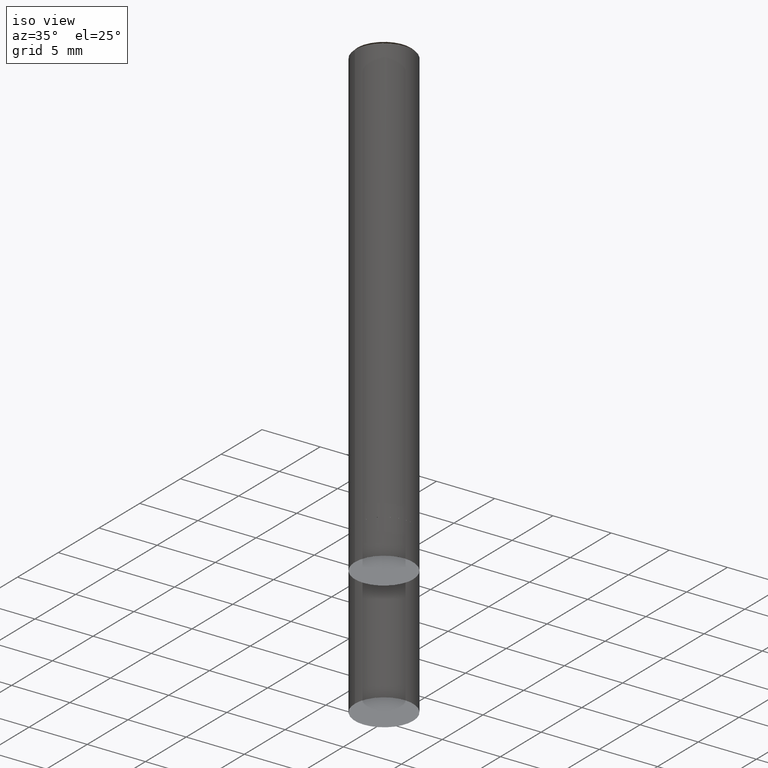
[diagram: clean part render]
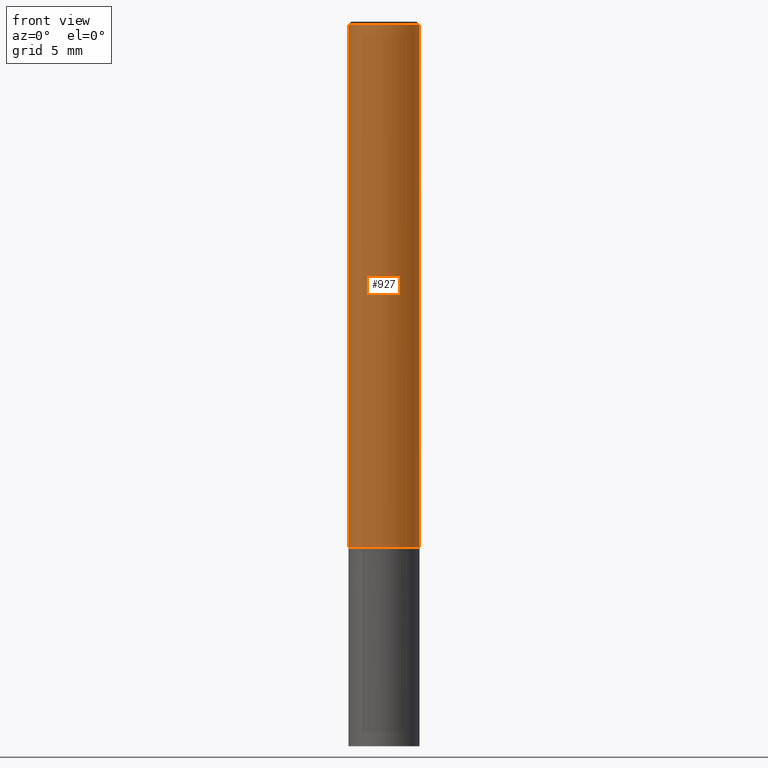
[diagram: tour spotlight — one face highlighted and labeled with its STEP entity id]
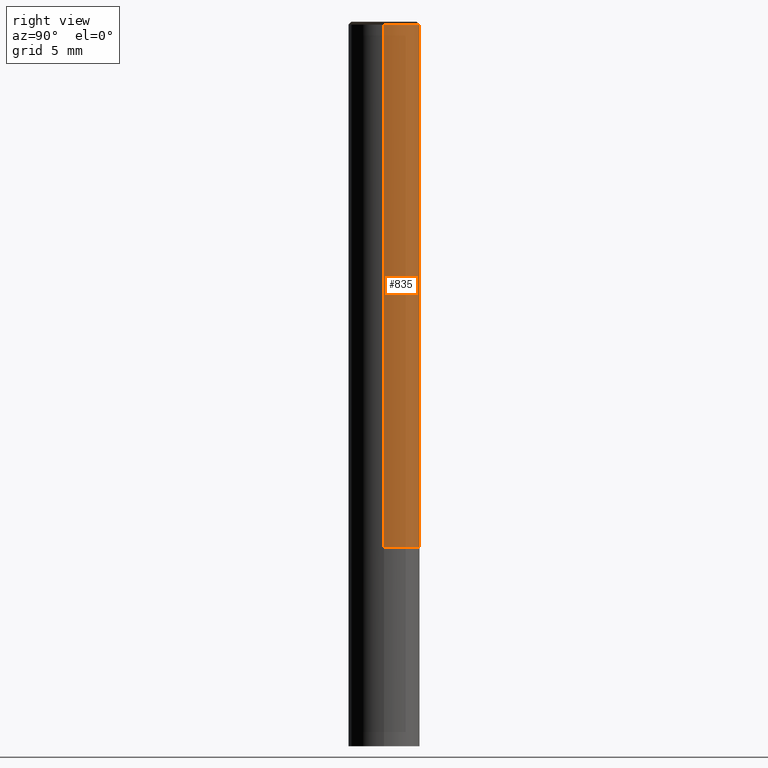
[diagram: tour spotlight — one face highlighted and labeled with its STEP entity id]
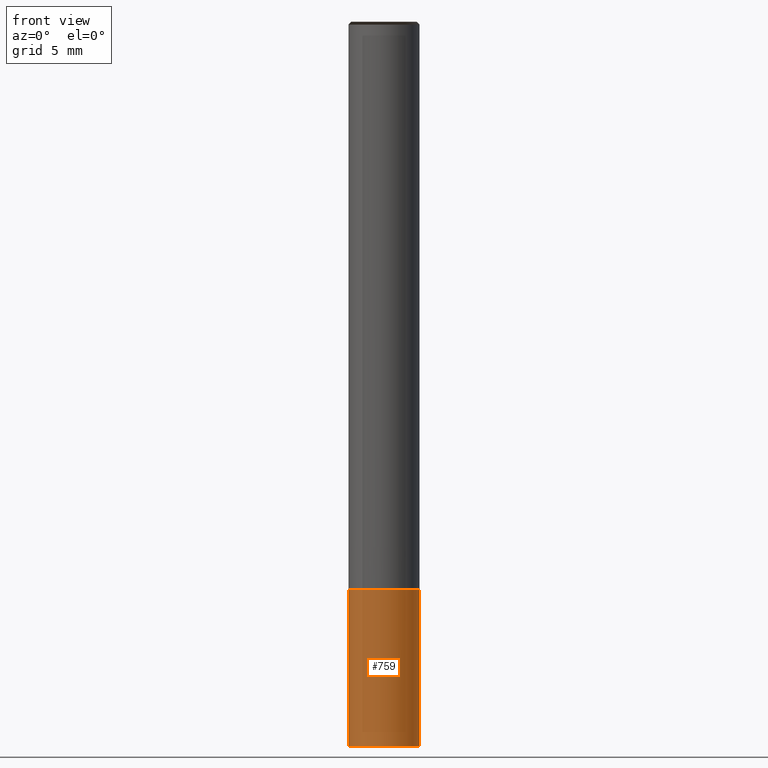
[diagram: tour spotlight — one face highlighted and labeled with its STEP entity id]
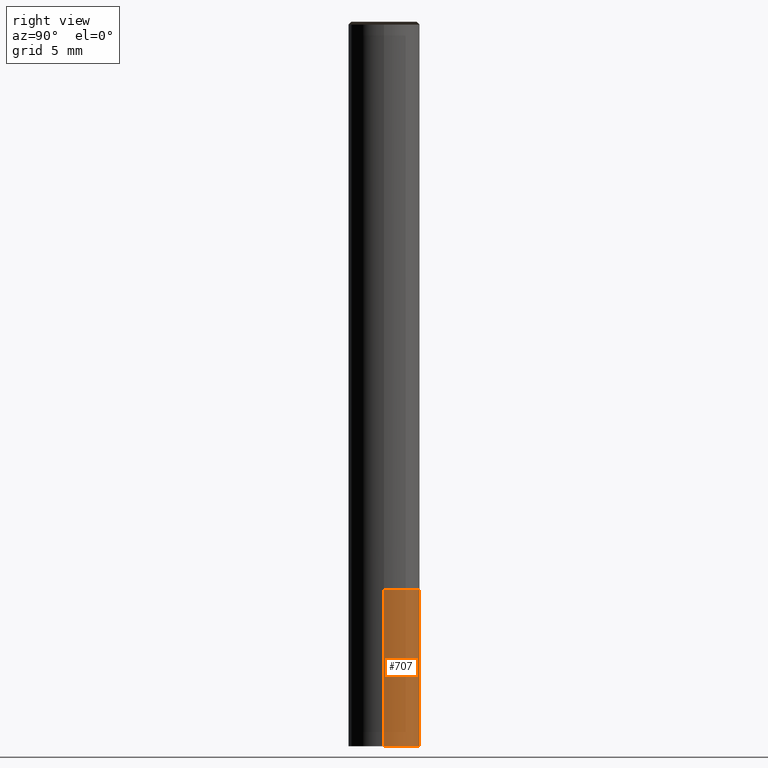
[diagram: tour spotlight — one face highlighted and labeled with its STEP entity id]
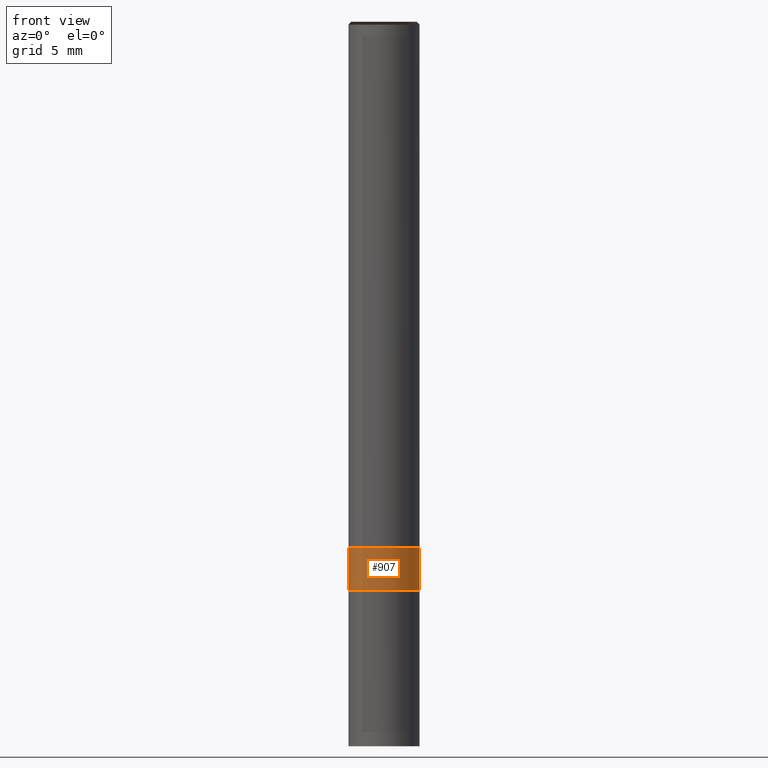
[diagram: tour spotlight — one face highlighted and labeled with its STEP entity id]
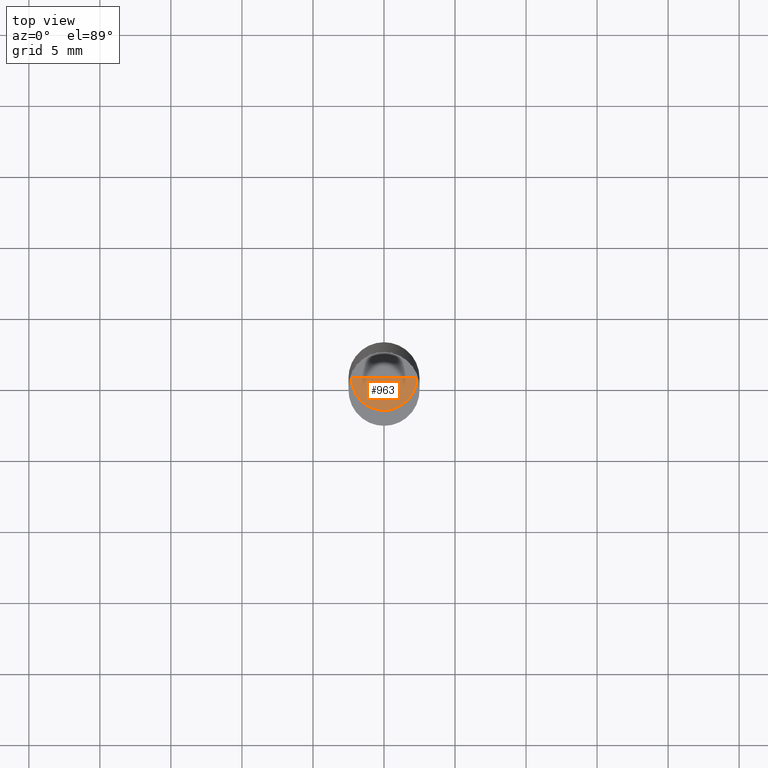
[diagram: tour spotlight — one face highlighted and labeled with its STEP entity id]
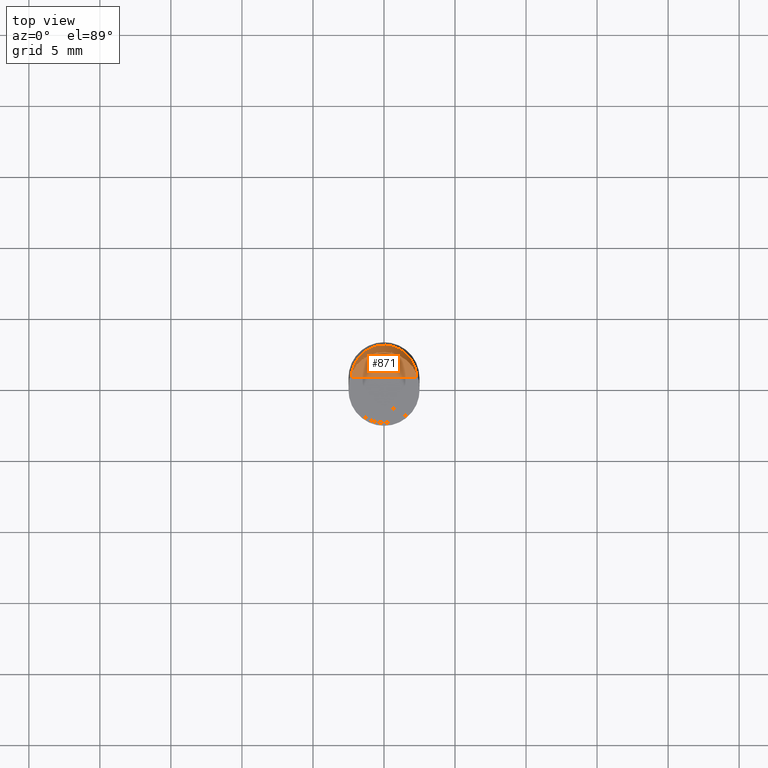
[diagram: tour spotlight — one face highlighted and labeled with its STEP entity id]
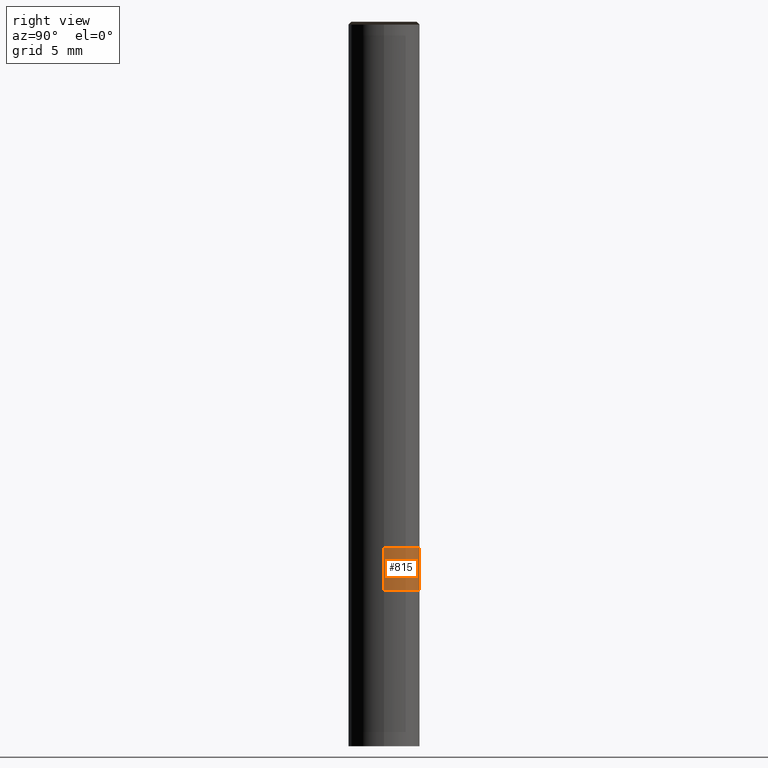
[diagram: tour spotlight — one face highlighted and labeled with its STEP entity id]
A machine part: a face-by-face anatomy tour. The part has 16 B-rep faces; the first image is the clean iso view, then the 8 largest visible faces are spotlighted one at a time (largest first), each with its STEP entity span.

Face 1 — front view, entity #927. In plain terms, the highlighted face is a freeform B-spline surface patch.
Definition (entity closure, byte-faithful):
#641=CARTESIAN_POINT('',(2.5,0.0,0.0));
#645=CARTESIAN_POINT('',(-2.5,0.0,0.0));
#646=CARTESIAN_POINT('',(2.5,0.0,36.8));
#650=CARTESIAN_POINT('',(-2.5,0.0,36.8));
#657=CARTESIAN_POINT('',(-2.5,-2.5,0.0));
#658=CARTESIAN_POINT('',(0.0,-2.5,0.0));
#659=CARTESIAN_POINT('',(2.5,-2.5,0.0));
#660=CARTESIAN_POINT('',(-2.5,-2.5,36.8));
#661=CARTESIAN_POINT('',(0.0,-2.5,36.8));
#662=CARTESIAN_POINT('',(2.5,-2.5,36.8));
#908=(
BOUNDED_SURFACE()
B_SPLINE_SURFACE(1,2,(
(#645,#657,#658,#659,#641),
(#650,#660,#661,#662,#646)
), .UNSPECIFIED.,.F.,.F.,.F.)
B_SPLINE_SURFACE_WITH_KNOTS((2,2),(3,2,3),(
0.0,1.0),(
0.0,0.5,1.0), .UNSPECIFIED.)
GEOMETRIC_REPRESENTATION_ITEM()
RATIONAL_B_SPLINE_SURFACE(((1.0,0.707106781187,1.0,0.707106781187,1.0),
(1.0,0.707106781187,1.0,0.707106781187,1.0)
))
REPRESENTATION_ITEM('')
SURFACE()
);
#909=(
BOUNDED_CURVE()
B_SPLINE_CURVE(2,(#641,#659,#658,#657,#645),.UNSPECIFIED.,.F.,.F.)
B_SPLINE_CURVE_WITH_KNOTS((3,2,3),
(0.0,0.5,1.0),.UNSPECIFIED.)
CURVE()
GEOMETRIC_REPRESENTATION_ITEM()
RATIONAL_B_SPLINE_CURVE((1.0,0.707106781187,1.0,0.707106781187,1.0))
REPRESENTATION_ITEM('')
);
#910=(
BOUNDED_CURVE()
B_SPLINE_CURVE(1,(#645,#650),.UNSPECIFIED.,.F.,.F.)
B_SPLINE_CURVE_WITH_KNOTS((2,2),
(0.0,1.0),.UNSPECIFIED.)
CURVE()
GEOMETRIC_REPRESENTATION_ITEM()
RATIONAL_B_SPLINE_CURVE((1.0,1.0))
REPRESENTATION_ITEM('')
);
#911=(
BOUNDED_CURVE()
B_SPLINE_CURVE(2,(#650,#660,#661,#662,#646),.UNSPECIFIED.,.F.,.F.)
B_SPLINE_CURVE_WITH_KNOTS((3,2,3),
(0.0,0.5,1.0),.UNSPECIFIED.)
CURVE()
GEOMETRIC_REPRESENTATION_ITEM()
RATIONAL_B_SPLINE_CURVE((1.0,0.707106781187,1.0,0.707106781187,1.0))
REPRESENTATION_ITEM('')
);
#912=(
BOUNDED_CURVE()
B_SPLINE_CURVE(1,(#646,#641),.UNSPECIFIED.,.F.,.F.)
B_SPLINE_CURVE_WITH_KNOTS((2,2),
(0.0,1.0),.UNSPECIFIED.)
CURVE()
GEOMETRIC_REPRESENTATION_ITEM()
RATIONAL_B_SPLINE_CURVE((1.0,1.0))
REPRESENTATION_ITEM('')
);
#913=VERTEX_POINT('',#641);
#914=VERTEX_POINT('',#645);
#915=VERTEX_POINT('',#646);
#916=VERTEX_POINT('',#650);
#917=EDGE_CURVE('',#913,#914,#909,.T.);
#918=EDGE_CURVE('',#914,#916,#910,.T.);
#919=EDGE_CURVE('',#916,#915,#911,.T.);
#920=EDGE_CURVE('',#915,#913,#912,.T.);
#921=ORIENTED_EDGE('',*,*,#917,.T.);
#922=ORIENTED_EDGE('',*,*,#918,.T.);
#923=ORIENTED_EDGE('',*,*,#919,.T.);
#924=ORIENTED_EDGE('',*,*,#920,.T.);
#925=EDGE_LOOP('',(#921,#922,#923,#924));
#926=FACE_OUTER_BOUND('',#925,.T.);
#927=ADVANCED_FACE('',(#926),#908,.T.);

Face 2 — right view, entity #835. In plain terms, the highlighted face is a freeform B-spline surface patch.
Definition (entity closure, byte-faithful):
#641=CARTESIAN_POINT('',(2.5,0.0,0.0));
#642=CARTESIAN_POINT('',(2.5,2.5,0.0));
#643=CARTESIAN_POINT('',(0.0,2.5,0.0));
#644=CARTESIAN_POINT('',(-2.5,2.5,0.0));
#645=CARTESIAN_POINT('',(-2.5,0.0,0.0));
#646=CARTESIAN_POINT('',(2.5,0.0,36.8));
#647=CARTESIAN_POINT('',(2.5,2.5,36.8));
#648=CARTESIAN_POINT('',(0.0,2.5,36.8));
#649=CARTESIAN_POINT('',(-2.5,2.5,36.8));
#650=CARTESIAN_POINT('',(-2.5,0.0,36.8));
#816=(
BOUNDED_SURFACE()
B_SPLINE_SURFACE(1,2,(
(#641,#642,#643,#644,#645),
(#646,#647,#648,#649,#650)
), .UNSPECIFIED.,.F.,.F.,.F.)
B_SPLINE_SURFACE_WITH_KNOTS((2,2),(3,2,3),(
0.0,1.0),(
0.0,0.5,1.0), .UNSPECIFIED.)
GEOMETRIC_REPRESENTATION_ITEM()
RATIONAL_B_SPLINE_SURFACE(((1.0,0.707106781187,1.0,0.707106781187,1.0),
(1.0,0.707106781187,1.0,0.707106781187,1.0)
))
REPRESENTATION_ITEM('')
SURFACE()
);
#817=(
BOUNDED_CURVE()
B_SPLINE_CURVE(2,(#645,#644,#643,#642,#641),.UNSPECIFIED.,.F.,.F.)
B_SPLINE_CURVE_WITH_KNOTS((3,2,3),
(0.0,0.5,1.0),.UNSPECIFIED.)
CURVE()
GEOMETRIC_REPRESENTATION_ITEM()
RATIONAL_B_SPLINE_CURVE((1.0,0.707106781187,1.0,0.707106781187,1.0))
REPRESENTATION_ITEM('')
);
#818=(
BOUNDED_CURVE()
B_SPLINE_CURVE(1,(#641,#646),.UNSPECIFIED.,.F.,.F.)
B_SPLINE_CURVE_WITH_KNOTS((2,2),
(0.0,1.0),.UNSPECIFIED.)
CURVE()
GEOMETRIC_REPRESENTATION_ITEM()
RATIONAL_B_SPLINE_CURVE((1.0,1.0))
REPRESENTATION_ITEM('')
);
#819=(
BOUNDED_CURVE()
B_SPLINE_CURVE(2,(#646,#647,#648,#649,#650),.UNSPECIFIED.,.F.,.F.)
B_SPLINE_CURVE_WITH_KNOTS((3,2,3),
(0.0,0.5,1.0),.UNSPECIFIED.)
CURVE()
GEOMETRIC_REPRESENTATION_ITEM()
RATIONAL_B_SPLINE_CURVE((1.0,0.707106781187,1.0,0.707106781187,1.0))
REPRESENTATION_ITEM('')
);
#820=(
BOUNDED_CURVE()
B_SPLINE_CURVE(1,(#650,#645),.UNSPECIFIED.,.F.,.F.)
B_SPLINE_CURVE_WITH_KNOTS((2,2),
(0.0,1.0),.UNSPECIFIED.)
CURVE()
GEOMETRIC_REPRESENTATION_ITEM()
RATIONAL_B_SPLINE_CURVE((1.0,1.0))
REPRESENTATION_ITEM('')
);
#821=VERTEX_POINT('',#641);
#822=VERTEX_POINT('',#645);
#823=VERTEX_POINT('',#646);
#824=VERTEX_POINT('',#650);
#825=EDGE_CURVE('',#822,#821,#817,.T.);
#826=EDGE_CURVE('',#821,#823,#818,.T.);
#827=EDGE_CURVE('',#823,#824,#819,.T.);
#828=EDGE_CURVE('',#824,#822,#820,.T.);
#829=ORIENTED_EDGE('',*,*,#825,.T.);
#830=ORIENTED_EDGE('',*,*,#826,.T.);
#831=ORIENTED_EDGE('',*,*,#827,.T.);
#832=ORIENTED_EDGE('',*,*,#828,.T.);
#833=EDGE_LOOP('',(#829,#830,#831,#832));
#834=FACE_OUTER_BOUND('',#833,.T.);
#835=ADVANCED_FACE('',(#834),#816,.T.);

Face 3 — front view, entity #759. In plain terms, the highlighted face is a freeform B-spline surface patch.
Definition (entity closure, byte-faithful):
#109=CARTESIAN_POINT('',(0.0,-2.5,-14.0));
#625=CARTESIAN_POINT('',(2.5,0.0,-14.0));
#629=CARTESIAN_POINT('',(-2.5,0.0,-14.0));
#630=CARTESIAN_POINT('',(2.5,0.0,-3.0));
#634=CARTESIAN_POINT('',(-2.5,0.0,-3.0));
#636=CARTESIAN_POINT('',(-2.5,-2.5,-14.0));
#637=CARTESIAN_POINT('',(2.5,-2.5,-14.0));
#638=CARTESIAN_POINT('',(-2.5,-2.5,-3.0));
#639=CARTESIAN_POINT('',(0.0,-2.5,-3.0));
#640=CARTESIAN_POINT('',(2.5,-2.5,-3.0));
#740=(
BOUNDED_SURFACE()
B_SPLINE_SURFACE(1,2,(
(#629,#636,#109,#637,#625),
(#634,#638,#639,#640,#630)
), .UNSPECIFIED.,.F.,.F.,.F.)
B_SPLINE_SURFACE_WITH_KNOTS((2,2),(3,2,3),(
0.0,1.0),(
0.0,0.5,1.0), .UNSPECIFIED.)
GEOMETRIC_REPRESENTATION_ITEM()
RATIONAL_B_SPLINE_SURFACE(((1.0,0.707106781187,1.0,0.707106781187,1.0),
(1.0,0.707106781187,1.0,0.707106781187,1.0)
))
REPRESENTATION_ITEM('')
SURFACE()
);
#741=(
BOUNDED_CURVE()
B_SPLINE_CURVE(2,(#625,#637,#109,#636,#629),.UNSPECIFIED.,.F.,.F.)
B_SPLINE_CURVE_WITH_KNOTS((3,2,3),
(0.0,0.5,1.0),.UNSPECIFIED.)
CURVE()
GEOMETRIC_REPRESENTATION_ITEM()
RATIONAL_B_SPLINE_CURVE((1.0,0.707106781187,1.0,0.707106781187,1.0))
REPRESENTATION_ITEM('')
);
#742=(
BOUNDED_CURVE()
B_SPLINE_CURVE(1,(#629,#634),.UNSPECIFIED.,.F.,.F.)
B_SPLINE_CURVE_WITH_KNOTS((2,2),
(0.0,1.0),.UNSPECIFIED.)
CURVE()
GEOMETRIC_REPRESENTATION_ITEM()
RATIONAL_B_SPLINE_CURVE((1.0,1.0))
REPRESENTATION_ITEM('')
);
#743=(
BOUNDED_CURVE()
B_SPLINE_CURVE(2,(#634,#638,#639,#640,#630),.UNSPECIFIED.,.F.,.F.)
B_SPLINE_CURVE_WITH_KNOTS((3,2,3),
(0.0,0.5,1.0),.UNSPECIFIED.)
CURVE()
GEOMETRIC_REPRESENTATION_ITEM()
RATIONAL_B_SPLINE_CURVE((1.0,0.707106781187,1.0,0.707106781187,1.0))
REPRESENTATION_ITEM('')
);
#744=(
BOUNDED_CURVE()
B_SPLINE_CURVE(1,(#630,#625),.UNSPECIFIED.,.F.,.F.)
B_SPLINE_CURVE_WITH_KNOTS((2,2),
(0.0,1.0),.UNSPECIFIED.)
CURVE()
GEOMETRIC_REPRESENTATION_ITEM()
RATIONAL_B_SPLINE_CURVE((1.0,1.0))
REPRESENTATION_ITEM('')
);
#745=VERTEX_POINT('',#625);
#746=VERTEX_POINT('',#629);
#747=VERTEX_POINT('',#630);
#748=VERTEX_POINT('',#634);
#749=EDGE_CURVE('',#745,#746,#741,.T.);
#750=EDGE_CURVE('',#746,#748,#742,.T.);
#751=EDGE_CURVE('',#748,#747,#743,.T.);
#752=EDGE_CURVE('',#747,#745,#744,.T.);
#753=ORIENTED_EDGE('',*,*,#749,.T.);
#754=ORIENTED_EDGE('',*,*,#750,.T.);
#755=ORIENTED_EDGE('',*,*,#751,.T.);
#756=ORIENTED_EDGE('',*,*,#752,.T.);
#757=EDGE_LOOP('',(#753,#754,#755,#756));
#758=FACE_OUTER_BOUND('',#757,.T.);
#759=ADVANCED_FACE('',(#758),#740,.T.);

Face 4 — right view, entity #707. In plain terms, the highlighted face is a freeform B-spline surface patch.
Definition (entity closure, byte-faithful):
#625=CARTESIAN_POINT('',(2.5,0.0,-14.0));
#626=CARTESIAN_POINT('',(2.5,2.5,-14.0));
#627=CARTESIAN_POINT('',(0.0,2.5,-14.0));
#628=CARTESIAN_POINT('',(-2.5,2.5,-14.0));
#629=CARTESIAN_POINT('',(-2.5,0.0,-14.0));
#630=CARTESIAN_POINT('',(2.5,0.0,-3.0));
#631=CARTESIAN_POINT('',(2.5,2.5,-3.0));
#632=CARTESIAN_POINT('',(0.0,2.5,-3.0));
#633=CARTESIAN_POINT('',(-2.5,2.5,-3.0));
#634=CARTESIAN_POINT('',(-2.5,0.0,-3.0));
#688=(
BOUNDED_SURFACE()
B_SPLINE_SURFACE(1,2,(
(#625,#626,#627,#628,#629),
(#630,#631,#632,#633,#634)
), .UNSPECIFIED.,.F.,.F.,.F.)
B_SPLINE_SURFACE_WITH_KNOTS((2,2),(3,2,3),(
0.0,1.0),(
0.0,0.5,1.0), .UNSPECIFIED.)
GEOMETRIC_REPRESENTATION_ITEM()
RATIONAL_B_SPLINE_SURFACE(((1.0,0.707106781187,1.0,0.707106781187,1.0),
(1.0,0.707106781187,1.0,0.707106781187,1.0)
))
REPRESENTATION_ITEM('')
SURFACE()
);
#689=(
BOUNDED_CURVE()
B_SPLINE_CURVE(2,(#629,#628,#627,#626,#625),.UNSPECIFIED.,.F.,.F.)
B_SPLINE_CURVE_WITH_KNOTS((3,2,3),
(0.0,0.5,1.0),.UNSPECIFIED.)
CURVE()
GEOMETRIC_REPRESENTATION_ITEM()
RATIONAL_B_SPLINE_CURVE((1.0,0.707106781187,1.0,0.707106781187,1.0))
REPRESENTATION_ITEM('')
);
#690=(
BOUNDED_CURVE()
B_SPLINE_CURVE(1,(#625,#630),.UNSPECIFIED.,.F.,.F.)
B_SPLINE_CURVE_WITH_KNOTS((2,2),
(0.0,1.0),.UNSPECIFIED.)
CURVE()
GEOMETRIC_REPRESENTATION_ITEM()
RATIONAL_B_SPLINE_CURVE((1.0,1.0))
REPRESENTATION_ITEM('')
);
#691=(
BOUNDED_CURVE()
B_SPLINE_CURVE(2,(#630,#631,#632,#633,#634),.UNSPECIFIED.,.F.,.F.)
B_SPLINE_CURVE_WITH_KNOTS((3,2,3),
(0.0,0.5,1.0),.UNSPECIFIED.)
CURVE()
GEOMETRIC_REPRESENTATION_ITEM()
RATIONAL_B_SPLINE_CURVE((1.0,0.707106781187,1.0,0.707106781187,1.0))
REPRESENTATION_ITEM('')
);
#692=(
BOUNDED_CURVE()
B_SPLINE_CURVE(1,(#634,#629),.UNSPECIFIED.,.F.,.F.)
B_SPLINE_CURVE_WITH_KNOTS((2,2),
(0.0,1.0),.UNSPECIFIED.)
CURVE()
GEOMETRIC_REPRESENTATION_ITEM()
RATIONAL_B_SPLINE_CURVE((1.0,1.0))
REPRESENTATION_ITEM('')
);
#693=VERTEX_POINT('',#625);
#694=VERTEX_POINT('',#629);
#695=VERTEX_POINT('',#630);
#696=VERTEX_POINT('',#634);
#697=EDGE_CURVE('',#694,#693,#689,.T.);
#698=EDGE_CURVE('',#693,#695,#690,.T.);
#699=EDGE_CURVE('',#695,#696,#691,.T.);
#700=EDGE_CURVE('',#696,#694,#692,.T.);
#701=ORIENTED_EDGE('',*,*,#697,.T.);
#702=ORIENTED_EDGE('',*,*,#698,.T.);
#703=ORIENTED_EDGE('',*,*,#699,.T.);
#704=ORIENTED_EDGE('',*,*,#700,.T.);
#705=EDGE_LOOP('',(#701,#702,#703,#704));
#706=FACE_OUTER_BOUND('',#705,.T.);
#707=ADVANCED_FACE('',(#706),#688,.T.);

Face 5 — front view, entity #907. In plain terms, the highlighted face is a freeform B-spline surface patch.
Definition (entity closure, byte-faithful):
#630=CARTESIAN_POINT('',(2.5,0.0,-3.0));
#634=CARTESIAN_POINT('',(-2.5,0.0,-3.0));
#638=CARTESIAN_POINT('',(-2.5,-2.5,-3.0));
#639=CARTESIAN_POINT('',(0.0,-2.5,-3.0));
#640=CARTESIAN_POINT('',(2.5,-2.5,-3.0));
#641=CARTESIAN_POINT('',(2.5,0.0,0.0));
#645=CARTESIAN_POINT('',(-2.5,0.0,0.0));
#657=CARTESIAN_POINT('',(-2.5,-2.5,0.0));
#658=CARTESIAN_POINT('',(0.0,-2.5,0.0));
#659=CARTESIAN_POINT('',(2.5,-2.5,0.0));
#888=(
BOUNDED_SURFACE()
B_SPLINE_SURFACE(1,2,(
(#634,#638,#639,#640,#630),
(#645,#657,#658,#659,#641)
), .UNSPECIFIED.,.F.,.F.,.F.)
B_SPLINE_SURFACE_WITH_KNOTS((2,2),(3,2,3),(
0.0,1.0),(
0.0,0.5,1.0), .UNSPECIFIED.)
GEOMETRIC_REPRESENTATION_ITEM()
RATIONAL_B_SPLINE_SURFACE(((1.0,0.707106781187,1.0,0.707106781187,1.0),
(1.0,0.707106781187,1.0,0.707106781187,1.0)
))
REPRESENTATION_ITEM('')
SURFACE()
);
#889=(
BOUNDED_CURVE()
B_SPLINE_CURVE(2,(#630,#640,#639,#638,#634),.UNSPECIFIED.,.F.,.F.)
B_SPLINE_CURVE_WITH_KNOTS((3,2,3),
(0.0,0.5,1.0),.UNSPECIFIED.)
CURVE()
GEOMETRIC_REPRESENTATION_ITEM()
RATIONAL_B_SPLINE_CURVE((1.0,0.707106781187,1.0,0.707106781187,1.0))
REPRESENTATION_ITEM('')
);
#890=(
BOUNDED_CURVE()
B_SPLINE_CURVE(1,(#634,#645),.UNSPECIFIED.,.F.,.F.)
B_SPLINE_CURVE_WITH_KNOTS((2,2),
(0.0,1.0),.UNSPECIFIED.)
CURVE()
GEOMETRIC_REPRESENTATION_ITEM()
RATIONAL_B_SPLINE_CURVE((1.0,1.0))
REPRESENTATION_ITEM('')
);
#891=(
BOUNDED_CURVE()
B_SPLINE_CURVE(2,(#645,#657,#658,#659,#641),.UNSPECIFIED.,.F.,.F.)
B_SPLINE_CURVE_WITH_KNOTS((3,2,3),
(0.0,0.5,1.0),.UNSPECIFIED.)
CURVE()
GEOMETRIC_REPRESENTATION_ITEM()
RATIONAL_B_SPLINE_CURVE((1.0,0.707106781187,1.0,0.707106781187,1.0))
REPRESENTATION_ITEM('')
);
#892=(
BOUNDED_CURVE()
B_SPLINE_CURVE(1,(#641,#630),.UNSPECIFIED.,.F.,.F.)
B_SPLINE_CURVE_WITH_KNOTS((2,2),
(0.0,1.0),.UNSPECIFIED.)
CURVE()
GEOMETRIC_REPRESENTATION_ITEM()
RATIONAL_B_SPLINE_CURVE((1.0,1.0))
REPRESENTATION_ITEM('')
);
#893=VERTEX_POINT('',#630);
#894=VERTEX_POINT('',#634);
#895=VERTEX_POINT('',#641);
#896=VERTEX_POINT('',#645);
#897=EDGE_CURVE('',#893,#894,#889,.T.);
#898=EDGE_CURVE('',#894,#896,#890,.T.);
#899=EDGE_CURVE('',#896,#895,#891,.T.);
#900=EDGE_CURVE('',#895,#893,#892,.T.);
#901=ORIENTED_EDGE('',*,*,#897,.T.);
#902=ORIENTED_EDGE('',*,*,#898,.T.);
#903=ORIENTED_EDGE('',*,*,#899,.T.);
#904=ORIENTED_EDGE('',*,*,#900,.T.);
#905=EDGE_LOOP('',(#901,#902,#903,#904));
#906=FACE_OUTER_BOUND('',#905,.T.);
#907=ADVANCED_FACE('',(#906),#888,.T.);

Face 6 — top view, entity #963. In plain terms, the highlighted face is a freeform B-spline surface patch.
Definition (entity closure, byte-faithful):
#651=CARTESIAN_POINT('',(2.3,0.0,37.0));
#655=CARTESIAN_POINT('',(-2.3,0.0,37.0));
#656=CARTESIAN_POINT('',(0.0,0.0,37.0));
#663=CARTESIAN_POINT('',(-2.3,-2.3,37.0));
#664=CARTESIAN_POINT('',(0.0,-2.3,37.0));
#665=CARTESIAN_POINT('',(2.3,-2.3,37.0));
#948=(
BOUNDED_SURFACE()
B_SPLINE_SURFACE(1,2,(
(#655,#663,#664,#665,#651),
(#656,#656,#656,#656,#656)
), .UNSPECIFIED.,.F.,.F.,.F.)
B_SPLINE_SURFACE_WITH_KNOTS((2,2),(3,2,3),(
0.0,1.0),(
0.0,0.5,1.0), .UNSPECIFIED.)
GEOMETRIC_REPRESENTATION_ITEM()
RATIONAL_B_SPLINE_SURFACE(((1.0,0.707106781187,1.0,0.707106781187,1.0),
(1.0,0.707106781187,1.0,0.707106781187,1.0)
))
REPRESENTATION_ITEM('')
SURFACE()
);
#949=(
BOUNDED_CURVE()
B_SPLINE_CURVE(2,(#651,#665,#664,#663,#655),.UNSPECIFIED.,.F.,.F.)
B_SPLINE_CURVE_WITH_KNOTS((3,2,3),
(0.0,0.5,1.0),.UNSPECIFIED.)
CURVE()
GEOMETRIC_REPRESENTATION_ITEM()
RATIONAL_B_SPLINE_CURVE((1.0,0.707106781187,1.0,0.707106781187,1.0))
REPRESENTATION_ITEM('')
);
#950=(
BOUNDED_CURVE()
B_SPLINE_CURVE(1,(#655,#656),.UNSPECIFIED.,.F.,.F.)
B_SPLINE_CURVE_WITH_KNOTS((2,2),
(0.0,1.0),.UNSPECIFIED.)
CURVE()
GEOMETRIC_REPRESENTATION_ITEM()
RATIONAL_B_SPLINE_CURVE((1.0,1.0))
REPRESENTATION_ITEM('')
);
#951=(
BOUNDED_CURVE()
B_SPLINE_CURVE(1,(#656,#651),.UNSPECIFIED.,.F.,.F.)
B_SPLINE_CURVE_WITH_KNOTS((2,2),
(0.0,1.0),.UNSPECIFIED.)
CURVE()
GEOMETRIC_REPRESENTATION_ITEM()
RATIONAL_B_SPLINE_CURVE((1.0,1.0))
REPRESENTATION_ITEM('')
);
#952=VERTEX_POINT('',#651);
#953=VERTEX_POINT('',#655);
#954=VERTEX_POINT('',#656);
#955=EDGE_CURVE('',#952,#953,#949,.T.);
#956=EDGE_CURVE('',#953,#954,#950,.T.);
#957=EDGE_CURVE('',#954,#952,#951,.T.);
#958=ORIENTED_EDGE('',*,*,#955,.T.);
#959=ORIENTED_EDGE('',*,*,#956,.T.);
#960=ORIENTED_EDGE('',*,*,#957,.T.);
#961=EDGE_LOOP('',(#958,#959,#960));
#962=FACE_OUTER_BOUND('',#961,.T.);
#963=ADVANCED_FACE('',(#962),#948,.T.);

Face 7 — top view, entity #871. In plain terms, the highlighted face is a freeform B-spline surface patch.
Definition (entity closure, byte-faithful):
#651=CARTESIAN_POINT('',(2.3,0.0,37.0));
#652=CARTESIAN_POINT('',(2.3,2.3,37.0));
#653=CARTESIAN_POINT('',(0.0,2.3,37.0));
#654=CARTESIAN_POINT('',(-2.3,2.3,37.0));
#655=CARTESIAN_POINT('',(-2.3,0.0,37.0));
#656=CARTESIAN_POINT('',(0.0,0.0,37.0));
#856=(
BOUNDED_SURFACE()
B_SPLINE_SURFACE(1,2,(
(#651,#652,#653,#654,#655),
(#656,#656,#656,#656,#656)
), .UNSPECIFIED.,.F.,.F.,.F.)
B_SPLINE_SURFACE_WITH_KNOTS((2,2),(3,2,3),(
0.0,1.0),(
0.0,0.5,1.0), .UNSPECIFIED.)
GEOMETRIC_REPRESENTATION_ITEM()
RATIONAL_B_SPLINE_SURFACE(((1.0,0.707106781187,1.0,0.707106781187,1.0),
(1.0,0.707106781187,1.0,0.707106781187,1.0)
))
REPRESENTATION_ITEM('')
SURFACE()
);
#857=(
BOUNDED_CURVE()
B_SPLINE_CURVE(2,(#655,#654,#653,#652,#651),.UNSPECIFIED.,.F.,.F.)
B_SPLINE_CURVE_WITH_KNOTS((3,2,3),
(0.0,0.5,1.0),.UNSPECIFIED.)
CURVE()
GEOMETRIC_REPRESENTATION_ITEM()
RATIONAL_B_SPLINE_CURVE((1.0,0.707106781187,1.0,0.707106781187,1.0))
REPRESENTATION_ITEM('')
);
#858=(
BOUNDED_CURVE()
B_SPLINE_CURVE(1,(#651,#656),.UNSPECIFIED.,.F.,.F.)
B_SPLINE_CURVE_WITH_KNOTS((2,2),
(0.0,1.0),.UNSPECIFIED.)
CURVE()
GEOMETRIC_REPRESENTATION_ITEM()
RATIONAL_B_SPLINE_CURVE((1.0,1.0))
REPRESENTATION_ITEM('')
);
#859=(
BOUNDED_CURVE()
B_SPLINE_CURVE(1,(#656,#655),.UNSPECIFIED.,.F.,.F.)
B_SPLINE_CURVE_WITH_KNOTS((2,2),
(0.0,1.0),.UNSPECIFIED.)
CURVE()
GEOMETRIC_REPRESENTATION_ITEM()
RATIONAL_B_SPLINE_CURVE((1.0,1.0))
REPRESENTATION_ITEM('')
);
#860=VERTEX_POINT('',#651);
#861=VERTEX_POINT('',#655);
#862=VERTEX_POINT('',#656);
#863=EDGE_CURVE('',#861,#860,#857,.T.);
#864=EDGE_CURVE('',#860,#862,#858,.T.);
#865=EDGE_CURVE('',#862,#861,#859,.T.);
#866=ORIENTED_EDGE('',*,*,#863,.T.);
#867=ORIENTED_EDGE('',*,*,#864,.T.);
#868=ORIENTED_EDGE('',*,*,#865,.T.);
#869=EDGE_LOOP('',(#866,#867,#868));
#870=FACE_OUTER_BOUND('',#869,.T.);
#871=ADVANCED_FACE('',(#870),#856,.T.);

Face 8 — right view, entity #815. In plain terms, the highlighted face is a freeform B-spline surface patch.
Definition (entity closure, byte-faithful):
#630=CARTESIAN_POINT('',(2.5,0.0,-3.0));
#631=CARTESIAN_POINT('',(2.5,2.5,-3.0));
#632=CARTESIAN_POINT('',(0.0,2.5,-3.0));
#633=CARTESIAN_POINT('',(-2.5,2.5,-3.0));
#634=CARTESIAN_POINT('',(-2.5,0.0,-3.0));
#641=CARTESIAN_POINT('',(2.5,0.0,0.0));
#642=CARTESIAN_POINT('',(2.5,2.5,0.0));
#643=CARTESIAN_POINT('',(0.0,2.5,0.0));
#644=CARTESIAN_POINT('',(-2.5,2.5,0.0));
#645=CARTESIAN_POINT('',(-2.5,0.0,0.0));
#796=(
BOUNDED_SURFACE()
B_SPLINE_SURFACE(1,2,(
(#630,#631,#632,#633,#634),
(#641,#642,#643,#644,#645)
), .UNSPECIFIED.,.F.,.F.,.F.)
B_SPLINE_SURFACE_WITH_KNOTS((2,2),(3,2,3),(
0.0,1.0),(
0.0,0.5,1.0), .UNSPECIFIED.)
GEOMETRIC_REPRESENTATION_ITEM()
RATIONAL_B_SPLINE_SURFACE(((1.0,0.707106781187,1.0,0.707106781187,1.0),
(1.0,0.707106781187,1.0,0.707106781187,1.0)
))
REPRESENTATION_ITEM('')
SURFACE()
);
#797=(
BOUNDED_CURVE()
B_SPLINE_CURVE(2,(#634,#633,#632,#631,#630),.UNSPECIFIED.,.F.,.F.)
B_SPLINE_CURVE_WITH_KNOTS((3,2,3),
(0.0,0.5,1.0),.UNSPECIFIED.)
CURVE()
GEOMETRIC_REPRESENTATION_ITEM()
RATIONAL_B_SPLINE_CURVE((1.0,0.707106781187,1.0,0.707106781187,1.0))
REPRESENTATION_ITEM('')
);
#798=(
BOUNDED_CURVE()
B_SPLINE_CURVE(1,(#630,#641),.UNSPECIFIED.,.F.,.F.)
B_SPLINE_CURVE_WITH_KNOTS((2,2),
(0.0,1.0),.UNSPECIFIED.)
CURVE()
GEOMETRIC_REPRESENTATION_ITEM()
RATIONAL_B_SPLINE_CURVE((1.0,1.0))
REPRESENTATION_ITEM('')
);
#799=(
BOUNDED_CURVE()
B_SPLINE_CURVE(2,(#641,#642,#643,#644,#645),.UNSPECIFIED.,.F.,.F.)
B_SPLINE_CURVE_WITH_KNOTS((3,2,3),
(0.0,0.5,1.0),.UNSPECIFIED.)
CURVE()
GEOMETRIC_REPRESENTATION_ITEM()
RATIONAL_B_SPLINE_CURVE((1.0,0.707106781187,1.0,0.707106781187,1.0))
REPRESENTATION_ITEM('')
);
#800=(
BOUNDED_CURVE()
B_SPLINE_CURVE(1,(#645,#634),.UNSPECIFIED.,.F.,.F.)
B_SPLINE_CURVE_WITH_KNOTS((2,2),
(0.0,1.0),.UNSPECIFIED.)
CURVE()
GEOMETRIC_REPRESENTATION_ITEM()
RATIONAL_B_SPLINE_CURVE((1.0,1.0))
REPRESENTATION_ITEM('')
);
#801=VERTEX_POINT('',#630);
#802=VERTEX_POINT('',#634);
#803=VERTEX_POINT('',#641);
#804=VERTEX_POINT('',#645);
#805=EDGE_CURVE('',#802,#801,#797,.T.);
#806=EDGE_CURVE('',#801,#803,#798,.T.);
#807=EDGE_CURVE('',#803,#804,#799,.T.);
#808=EDGE_CURVE('',#804,#802,#800,.T.);
#809=ORIENTED_EDGE('',*,*,#805,.T.);
#810=ORIENTED_EDGE('',*,*,#806,.T.);
#811=ORIENTED_EDGE('',*,*,#807,.T.);
#812=ORIENTED_EDGE('',*,*,#808,.T.);
#813=EDGE_LOOP('',(#809,#810,#811,#812));
#814=FACE_OUTER_BOUND('',#813,.T.);
#815=ADVANCED_FACE('',(#814),#796,.T.);